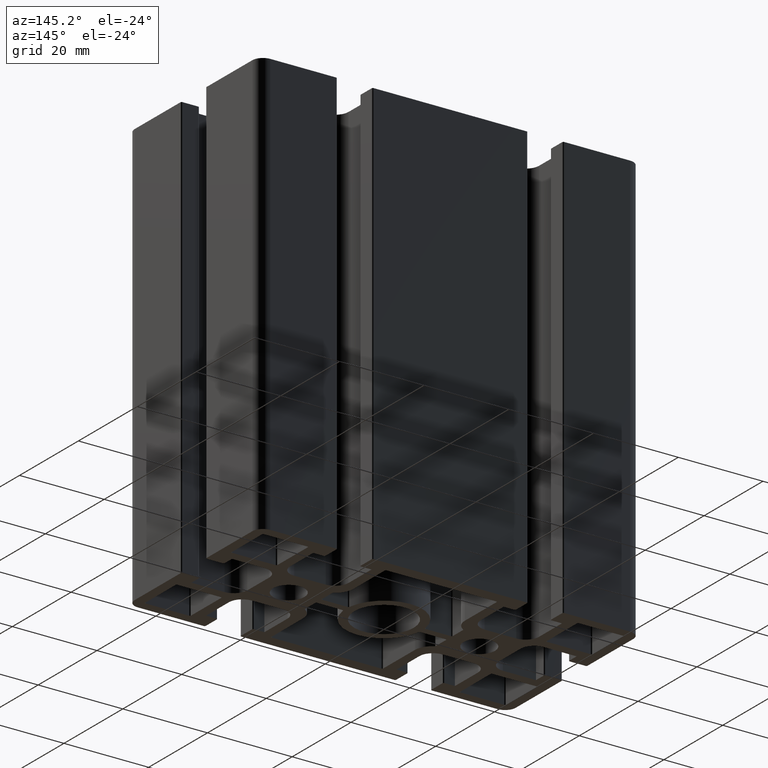
[diagram: clean part render]
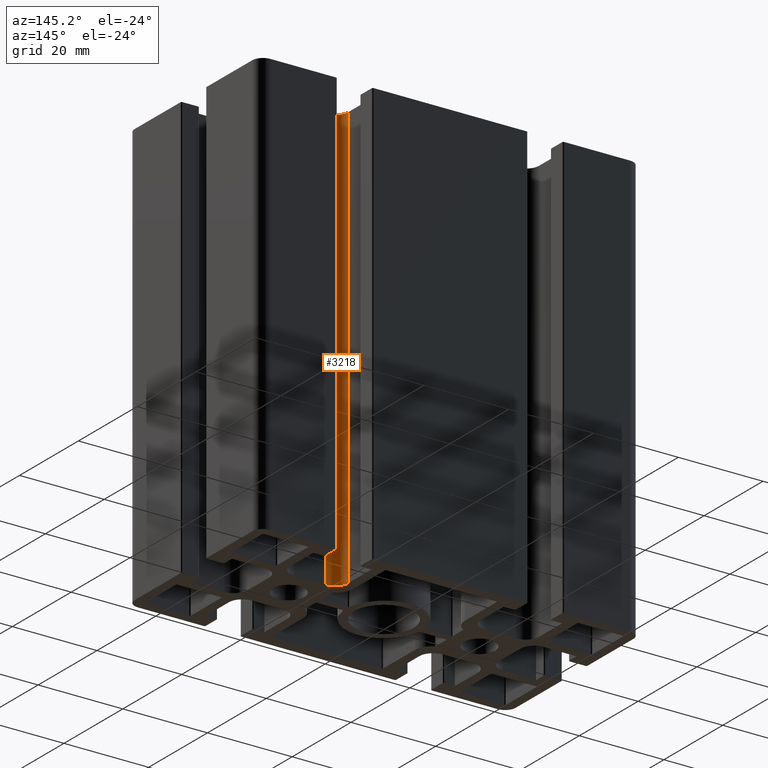
[diagram: same view with one face highlighted and labeled with its STEP entity id]
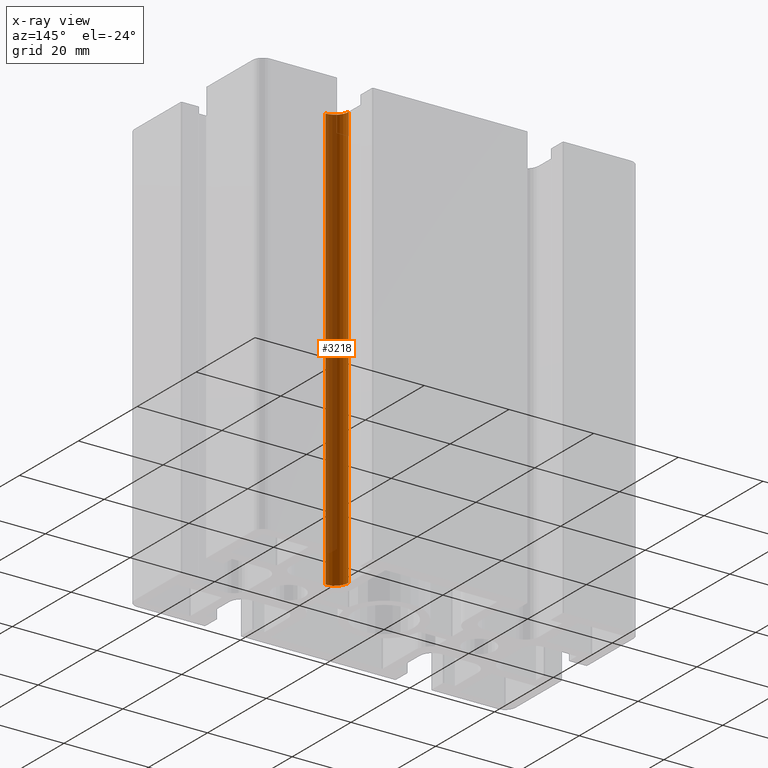
[diagram: x-ray of the same camera — body ghosted, the highlighted face saturated]
A machine part, auxiliary view. The second image highlights one B-rep face of the part: STEP entity #3218.
The next image is the same camera in x-ray: the body ghosted, the highlighted face saturated — about 46% of this face is hidden behind the body in this view.
In plain terms, the highlighted cylindrical surface (edge-blend (fillet) strip) has radius 3.2 mm, axis along (0, 0, 1).
Its self-contained STEP definition (entity closure, byte-faithful):
#192=FACE_OUTER_BOUND('',#360,.T.);
#360=EDGE_LOOP('',(#2375,#2376,#2377,#2378));
#602=LINE('',#5052,#926);
#603=LINE('',#5058,#927);
#926=VECTOR('',#4081,100.);
#927=VECTOR('',#4088,100.);
#1201=CIRCLE('',#3468,3.2);
#1202=CIRCLE('',#3469,3.2);
#1423=VERTEX_POINT('',#5045);
#1426=VERTEX_POINT('',#5050);
#1427=VERTEX_POINT('',#5054);
#1428=VERTEX_POINT('',#5056);
#1820=EDGE_CURVE('',#1423,#1426,#602,.T.);
#1821=EDGE_CURVE('',#1427,#1423,#1201,.T.);
#1822=EDGE_CURVE('',#1428,#1426,#1202,.T.);
#1823=EDGE_CURVE('',#1427,#1428,#603,.T.);
#2375=ORIENTED_EDGE('',*,*,#1821,.T.);
#2376=ORIENTED_EDGE('',*,*,#1820,.T.);
#2377=ORIENTED_EDGE('',*,*,#1822,.F.);
#2378=ORIENTED_EDGE('',*,*,#1823,.F.);
#3106=CYLINDRICAL_SURFACE('',#3467,3.2);
#3218=ADVANCED_FACE('',(#192),#3106,.F.);
#3467=AXIS2_PLACEMENT_3D('',#5053,#4082,#4083);
#3468=AXIS2_PLACEMENT_3D('',#5055,#4084,#4085);
#3469=AXIS2_PLACEMENT_3D('',#5057,#4086,#4087);
#4081=DIRECTION('',(0.,0.,1.));
#4082=DIRECTION('center_axis',(0.,0.,1.));
#4083=DIRECTION('ref_axis',(1.,0.,0.));
#4084=DIRECTION('center_axis',(0.,0.,-1.));
#4085=DIRECTION('ref_axis',(1.,0.,0.));
#4086=DIRECTION('center_axis',(0.,0.,-1.));
#4087=DIRECTION('ref_axis',(1.,0.,0.));
#4088=DIRECTION('',(0.,0.,1.));
#5045=CARTESIAN_POINT('',(15.6,10.4,0.));
#5050=CARTESIAN_POINT('',(15.6,10.4,100.));
#5052=CARTESIAN_POINT('',(15.6,10.4,0.));
#5053=CARTESIAN_POINT('Origin',(18.8,10.4,0.));
#5054=CARTESIAN_POINT('',(18.8,7.2,0.));
#5055=CARTESIAN_POINT('Origin',(18.8,10.4,0.));
#5056=CARTESIAN_POINT('',(18.8,7.2,100.));
#5057=CARTESIAN_POINT('Origin',(18.8,10.4,100.));
#5058=CARTESIAN_POINT('',(18.8,7.2,0.));